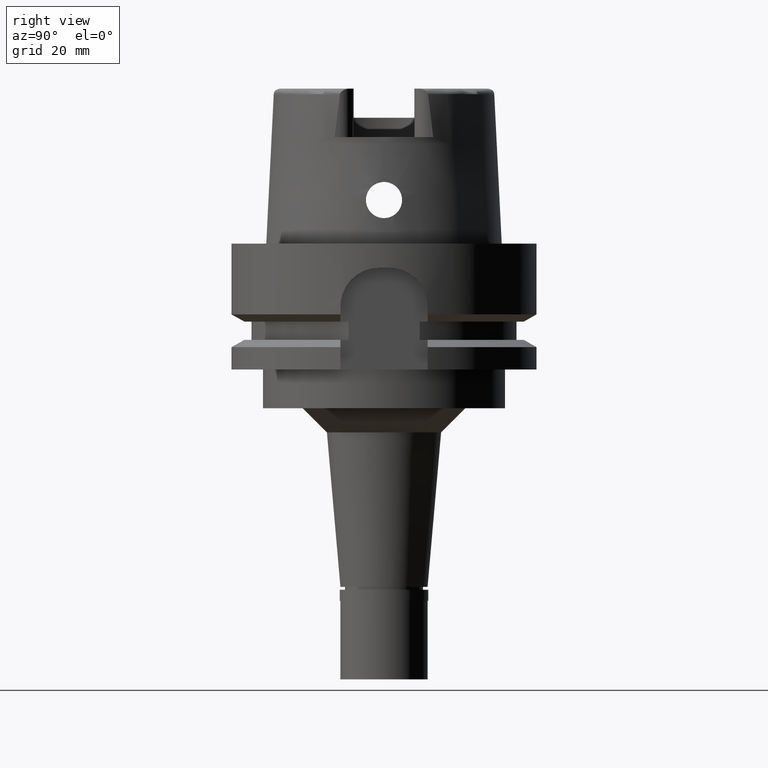
[diagram: clean part render]
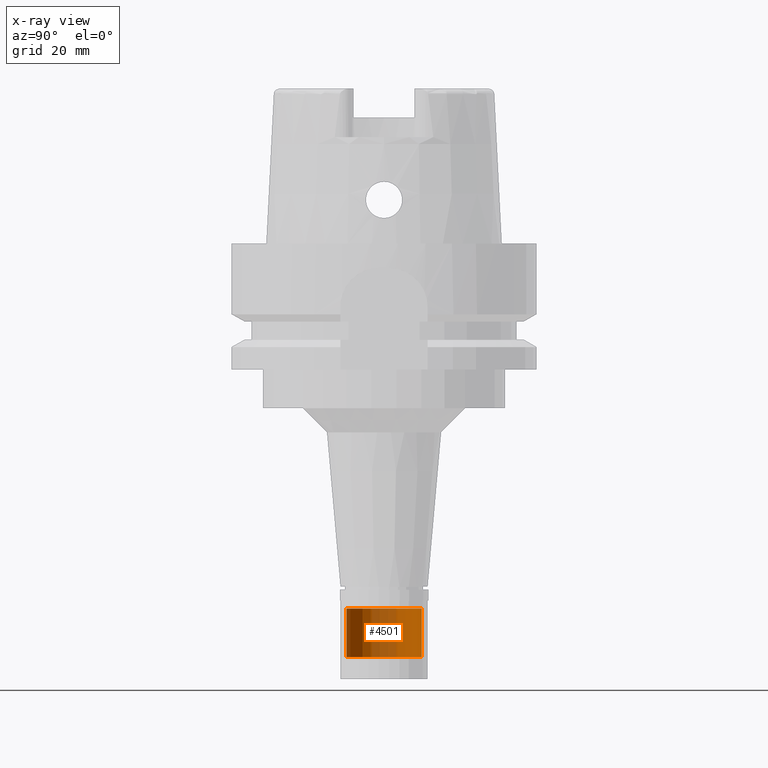
[diagram: x-ray — body ghosted, one internal face saturated and labeled with its STEP entity id]
A machine part, right view, then the same camera in x-ray: the body is ghosted and one INTERNAL B-rep face — a face not visible from any outside direction — is saturated and labeled: STEP entity #4501.
In plain terms, the highlighted cylindrical surface (partial cylindrical patch) has radius 7.8 mm, axis along (0, 0, -1).
Its self-contained STEP definition (entity closure, byte-faithful):
#79 = AXIS2_PLACEMENT_3D ( 'NONE', #3428, #3097, #489 ) ;
#94 = DIRECTION ( 'NONE',  ( 0.0000000000000000000, 0.0000000000000000000, 1.000000000000000000 ) ) ;
#119 = EDGE_CURVE ( 'NONE', #3982, #3335, #3913, .T. ) ;
#489 = DIRECTION ( 'NONE',  ( 0.0000000000000000000, -1.000000000000000000, 0.0000000000000000000 ) ) ;
#526 = DIRECTION ( 'NONE',  ( 0.0000000000000000000, -1.000000000000000000, 0.0000000000000000000 ) ) ;
#945 = CYLINDRICAL_SURFACE ( 'NONE', #3363, 7.799999999999999822 ) ;
#957 = ORIENTED_EDGE ( 'NONE', *, *, #3057, .T. ) ;
#1004 = CARTESIAN_POINT ( 'NONE',  ( 0.0000000000000000000, 7.799999999999999822, -85.40000000000000568 ) ) ;
#1473 = CARTESIAN_POINT ( 'NONE',  ( 0.0000000000000000000, -7.799999999999999822, -75.39999999999999147 ) ) ;
#1645 = CARTESIAN_POINT ( 'NONE',  ( 0.0000000000000000000, -7.799999999999999822, -85.40000000000000568 ) ) ;
#1715 = ORIENTED_EDGE ( 'NONE', *, *, #2844, .T. ) ;
#1868 = CIRCLE ( 'NONE', #79, 7.799999999999999822 ) ;
#1944 = VERTEX_POINT ( 'NONE', #2023 ) ;
#2023 = CARTESIAN_POINT ( 'NONE',  ( 0.0000000000000000000, 7.799999999999999822, -75.39999999999999147 ) ) ;
#2261 = DIRECTION ( 'NONE',  ( 0.0000000000000000000, 0.0000000000000000000, -1.000000000000000000 ) ) ;
#2410 = LINE ( 'NONE', #4101, #5197 ) ;
#2425 = EDGE_CURVE ( 'NONE', #3156, #3335, #2410, .T. ) ;
#2616 = DIRECTION ( 'NONE',  ( 0.0000000000000000000, 1.000000000000000000, 0.0000000000000000000 ) ) ;
#2638 = CARTESIAN_POINT ( 'NONE',  ( 0.0000000000000000000, 0.0000000000000000000, 37.86999999999999744 ) ) ;
#2717 = ORIENTED_EDGE ( 'NONE', *, *, #2425, .F. ) ;
#2844 = EDGE_CURVE ( 'NONE', #3156, #1944, #1868, .T. ) ;
#3057 = EDGE_CURVE ( 'NONE', #1944, #3982, #4001, .T. ) ;
#3097 = DIRECTION ( 'NONE',  ( 0.0000000000000000000, 0.0000000000000000000, -1.000000000000000000 ) ) ;
#3156 = VERTEX_POINT ( 'NONE', #1473 ) ;
#3159 = EDGE_LOOP ( 'NONE', ( #5054, #2717, #1715, #957 ) ) ;
#3335 = VERTEX_POINT ( 'NONE', #1645 ) ;
#3363 = AXIS2_PLACEMENT_3D ( 'NONE', #2638, #2261, #526 ) ;
#3428 = CARTESIAN_POINT ( 'NONE',  ( 0.0000000000000000000, 0.0000000000000000000, -75.39999999999999147 ) ) ;
#3913 = CIRCLE ( 'NONE', #5074, 7.799999999999999822 ) ;
#3982 = VERTEX_POINT ( 'NONE', #1004 ) ;
#4001 = LINE ( 'NONE', #4890, #5110 ) ;
#4101 = CARTESIAN_POINT ( 'NONE',  ( 0.0000000000000000000, -7.799999999999999822, -75.39999999999999147 ) ) ;
#4376 = CARTESIAN_POINT ( 'NONE',  ( 0.0000000000000000000, 0.0000000000000000000, -85.40000000000000568 ) ) ;
#4501 = ADVANCED_FACE ( 'NONE', ( #4783 ), #945, .T. ) ;
#4783 = FACE_OUTER_BOUND ( 'NONE', #3159, .T. ) ;
#4890 = CARTESIAN_POINT ( 'NONE',  ( 0.0000000000000000000, 7.799999999999999822, -75.39999999999999147 ) ) ;
#4919 = DIRECTION ( 'NONE',  ( 0.0000000000000000000, 0.0000000000000000000, -1.000000000000000000 ) ) ;
#4935 = DIRECTION ( 'NONE',  ( 0.0000000000000000000, 0.0000000000000000000, -1.000000000000000000 ) ) ;
#5054 = ORIENTED_EDGE ( 'NONE', *, *, #119, .T. ) ;
#5074 = AXIS2_PLACEMENT_3D ( 'NONE', #4376, #94, #2616 ) ;
#5110 = VECTOR ( 'NONE', #4919, 1000.000000000000000 ) ;
#5197 = VECTOR ( 'NONE', #4935, 1000.000000000000000 ) ;